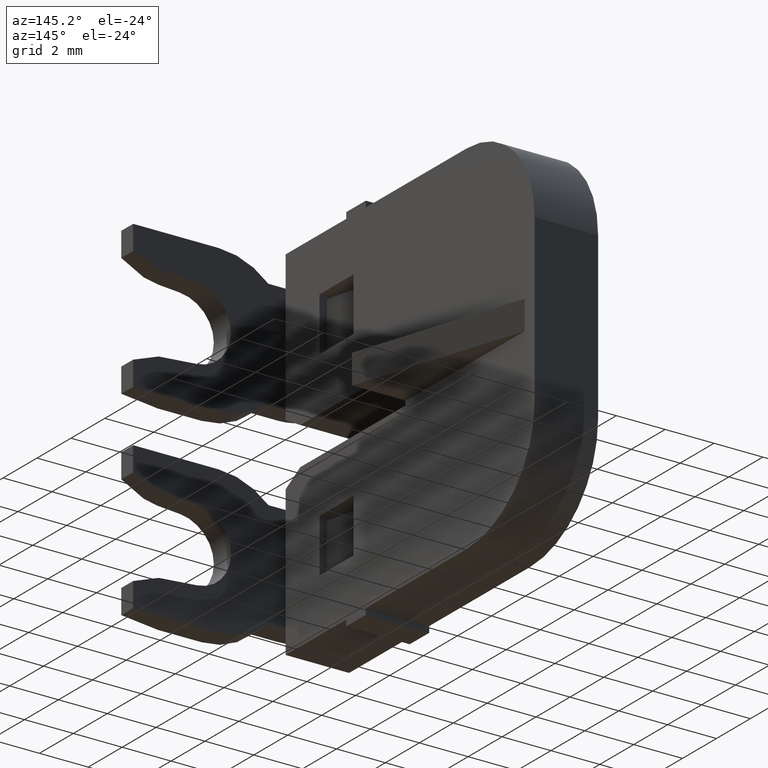
[diagram: clean part render]
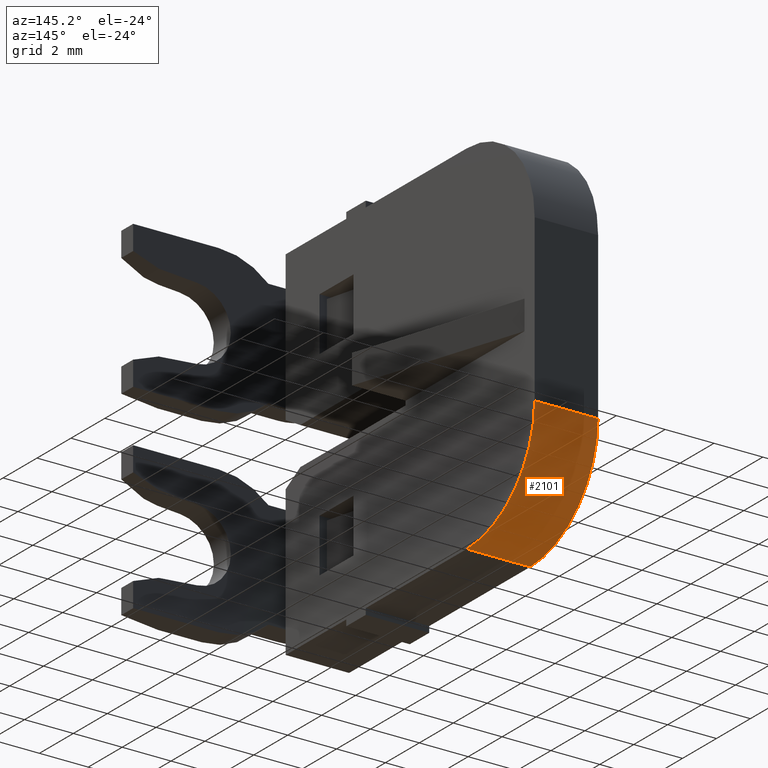
[diagram: same view with one face highlighted and labeled with its STEP entity id]
A machine part, auxiliary view. The second image highlights one B-rep face of the part: STEP entity #2101.
In plain terms, the highlighted cylindrical surface (partial cylindrical patch) has radius 4 mm, axis along (-1, -0, 0).
Its self-contained STEP definition (entity closure, byte-faithful):
#76 = LINE ( 'NONE', #143, #414 ) ;
#136 = DIRECTION ( 'NONE',  ( -1.000000000000000000, -3.538835890992685300E-015, 3.039180497173570300E-015 ) ) ;
#143 = CARTESIAN_POINT ( 'NONE',  ( 1472.445209356659900, 1090.934526901996200, -7.400000000000000400 ) ) ;
#159 = CARTESIAN_POINT ( 'NONE',  ( 1472.445209356659900, 1090.934526901996200, -7.400000000000000400 ) ) ;
#181 = CARTESIAN_POINT ( 'NONE',  ( 1475.045209356660100, 1090.934526901996200, -7.400000000000008300 ) ) ;
#224 = CARTESIAN_POINT ( 'NONE',  ( 1475.045209356660100, 1094.934526901996200, -3.399999999999999900 ) ) ;
#226 = CARTESIAN_POINT ( 'NONE',  ( 1472.445209356659900, 1094.934526901996200, -3.399999999999991900 ) ) ;
#390 = CIRCLE ( 'NONE', #399, 4.000000000000003600 ) ;
#399 = AXIS2_PLACEMENT_3D ( 'NONE', #2654, #2645, #2650 ) ;
#414 = VECTOR ( 'NONE', #136, 1000.000000000000000 ) ;
#415 = VECTOR ( 'NONE', #1333, 1000.000000000000000 ) ;
#429 = AXIS2_PLACEMENT_3D ( 'NONE', #1392, #1385, #1355 ) ;
#473 = CIRCLE ( 'NONE', #429, 4.000000000000003600 ) ;
#635 = AXIS2_PLACEMENT_3D ( 'NONE', #863, #855, #846 ) ;
#846 = DIRECTION ( 'NONE',  ( 0.0000000000000000000, 0.0000000000000000000, -1.000000000000000000 ) ) ;
#854 = CYLINDRICAL_SURFACE ( 'NONE', #635, 4.000000000000000000 ) ;
#855 = DIRECTION ( 'NONE',  ( -1.000000000000000000, -3.538835890992685300E-015, 3.003463711734375200E-015 ) ) ;
#863 = CARTESIAN_POINT ( 'NONE',  ( 1472.445209356659900, 1090.934526901996200, -3.399999999999999900 ) ) ;
#869 = FACE_OUTER_BOUND ( 'NONE', #2698, .T. ) ;
#1304 = LINE ( 'NONE', #1332, #415 ) ;
#1332 = CARTESIAN_POINT ( 'NONE',  ( 1475.045209356660100, 1094.934526901996200, -3.399999999999999900 ) ) ;
#1333 = DIRECTION ( 'NONE',  ( 1.000000000000000000, 3.538835890992685300E-015, -3.039180497173570300E-015 ) ) ;
#1355 = DIRECTION ( 'NONE',  ( 0.0000000000000000000, 1.000000000000000000, 0.0000000000000000000 ) ) ;
#1385 = DIRECTION ( 'NONE',  ( -1.000000000000000000, -3.538835890992685300E-015, 3.497202527569245500E-015 ) ) ;
#1392 = CARTESIAN_POINT ( 'NONE',  ( 1472.445209356659900, 1090.934526901996200, -3.399999999999999900 ) ) ;
#1876 = EDGE_CURVE ( 'NONE', #2784, #2840, #390, .T. ) ;
#1893 = EDGE_CURVE ( 'NONE', #2852, #2840, #1304, .T. ) ;
#1909 = EDGE_CURVE ( 'NONE', #2852, #2802, #473, .T. ) ;
#2101 = ADVANCED_FACE ( 'NONE', ( #869 ), #854, .T. ) ;
#2232 = EDGE_CURVE ( 'NONE', #2784, #2802, #76, .T. ) ;
#2645 = DIRECTION ( 'NONE',  ( 1.000000000000000000, 3.538835890992685300E-015, -3.250333119651810100E-015 ) ) ;
#2650 = DIRECTION ( 'NONE',  ( 0.0000000000000000000, -1.000000000000000000, 0.0000000000000000000 ) ) ;
#2654 = CARTESIAN_POINT ( 'NONE',  ( 1475.045209356660100, 1090.934526901996200, -3.400000000000007500 ) ) ;
#2698 = EDGE_LOOP ( 'NONE', ( #3177, #3155, #3148, #3144 ) ) ;
#2784 = VERTEX_POINT ( 'NONE', #181 ) ;
#2802 = VERTEX_POINT ( 'NONE', #159 ) ;
#2840 = VERTEX_POINT ( 'NONE', #224 ) ;
#2852 = VERTEX_POINT ( 'NONE', #226 ) ;
#3144 = ORIENTED_EDGE ( 'NONE', *, *, #1909, .F. ) ;
#3148 = ORIENTED_EDGE ( 'NONE', *, *, #2232, .T. ) ;
#3155 = ORIENTED_EDGE ( 'NONE', *, *, #1876, .F. ) ;
#3177 = ORIENTED_EDGE ( 'NONE', *, *, #1893, .T. ) ;